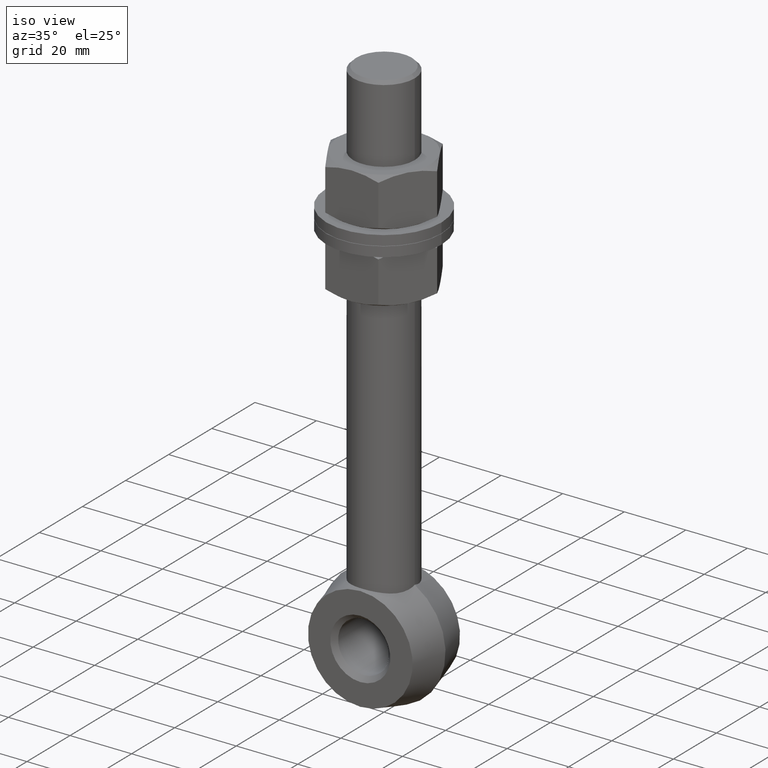
[diagram: clean part render]
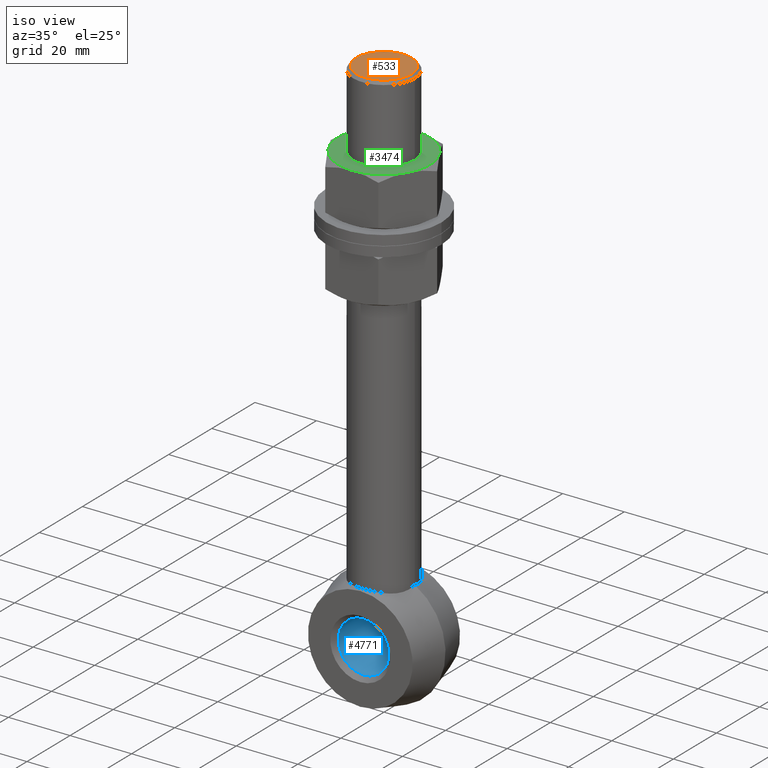
[diagram: same view with three faces highlighted in distinct colors, each labeled with its STEP entity id]
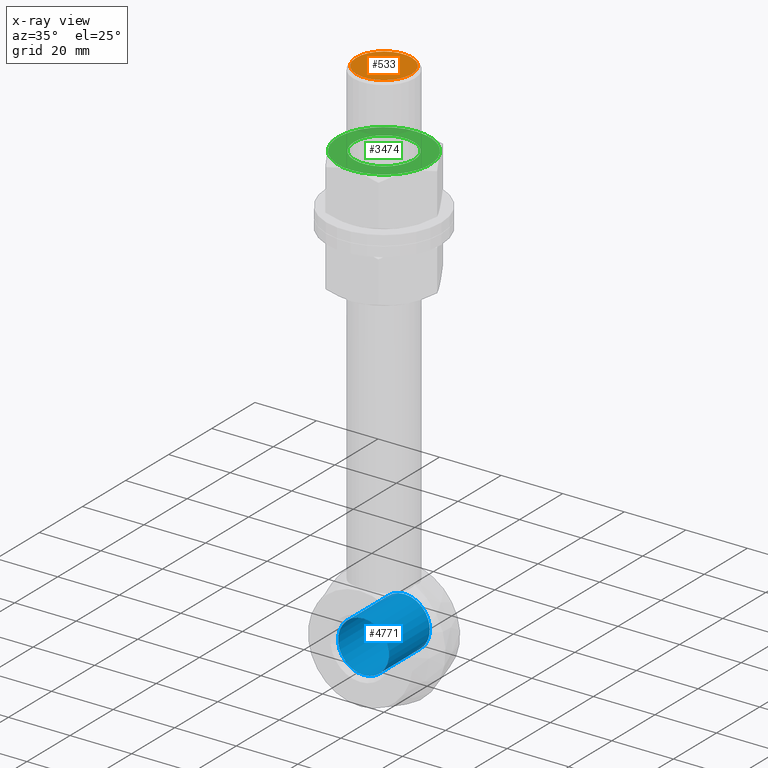
[diagram: x-ray of the same camera — body ghosted, the three highlighted faces saturated]
A machine part, iso view with three faces highlighted in distinct colors.
The next image is the same camera in x-ray (body ghosted, the three faces saturated) — at least one of them is partly hidden behind the body in this view.
Their STEP definitions:

[orange] entity #533 — the highlighted planar face has unit normal (0, 0, 1).
#533 = ADVANCED_FACE ( 'NONE', ( #6107 ), #5397, .T. ) ;
#551 = DIRECTION ( 'NONE',  ( 0.000000000000000000, 0.000000000000000000, 1.000000000000000000 ) ) ;
#1255 = CARTESIAN_POINT ( 'NONE',  ( 8.025394431364731758E-15, 0.000000000000000000, 83.50000000000000000 ) ) ;
#1591 = DIRECTION ( 'NONE',  ( 1.000000000000000000, 0.000000000000000000, -0.000000000000000000 ) ) ;
#1688 = CARTESIAN_POINT ( 'NONE',  ( 9.000000000000015987, 0.000000000000000000, 83.50000000000000000 ) ) ;
#1772 = EDGE_CURVE ( 'NONE', #6160, #6160, #1931, .T. ) ;
#1931 = CIRCLE ( 'NONE', #6230, 9.000000000000007105 ) ;
#3669 = ORIENTED_EDGE ( 'NONE', *, *, #1772, .T. ) ;
#3823 = CARTESIAN_POINT ( 'NONE',  ( 8.025394431364731758E-15, 0.000000000000000000, 83.50000000000000000 ) ) ;
#3874 = DIRECTION ( 'NONE',  ( 1.000000000000000000, 0.000000000000000000, 0.000000000000000000 ) ) ;
#5397 = PLANE ( 'NONE',  #5921 ) ;
#5921 = AXIS2_PLACEMENT_3D ( 'NONE', #3823, #551, #1591 ) ;
#6107 = FACE_OUTER_BOUND ( 'NONE', #6794, .T. ) ;
#6160 = VERTEX_POINT ( 'NONE', #1688 ) ;
#6230 = AXIS2_PLACEMENT_3D ( 'NONE', #1255, #6468, #3874 ) ;
#6468 = DIRECTION ( 'NONE',  ( 0.000000000000000000, 0.000000000000000000, 1.000000000000000000 ) ) ;
#6794 = EDGE_LOOP ( 'NONE', ( #3669 ) ) ;

[blue] entity #4771 — the highlighted cylindrical surface (bore or boss wall) has radius 8.25 mm, axis along (0, 1, 0).
#27 = EDGE_CURVE ( 'NONE', #184, #184, #3883, .T. ) ;
#184 = VERTEX_POINT ( 'NONE', #5582 ) ;
#225 = DIRECTION ( 'NONE',  ( -0.000000000000000000, -1.000000000000000000, -0.000000000000000000 ) ) ;
#245 = AXIS2_PLACEMENT_3D ( 'NONE', #1773, #6008, #6506 ) ;
#387 = AXIS2_PLACEMENT_3D ( 'NONE', #6309, #4204, #3155 ) ;
#399 = ORIENTED_EDGE ( 'NONE', *, *, #3100, .T. ) ;
#703 = CYLINDRICAL_SURFACE ( 'NONE', #245, 8.250000000000007105 ) ;
#766 = DIRECTION ( 'NONE',  ( 0.000000000000000000, 0.000000000000000000, 1.000000000000000000 ) ) ;
#910 = EDGE_LOOP ( 'NONE', ( #4862 ) ) ;
#1113 = FACE_OUTER_BOUND ( 'NONE', #1789, .T. ) ;
#1773 = CARTESIAN_POINT ( 'NONE',  ( 0.000000000000000000, -11.00000000000000000, -83.50000000000000000 ) ) ;
#1789 = EDGE_LOOP ( 'NONE', ( #399 ) ) ;
#2621 = VERTEX_POINT ( 'NONE', #3434 ) ;
#3100 = EDGE_CURVE ( 'NONE', #2621, #2621, #3214, .T. ) ;
#3155 = DIRECTION ( 'NONE',  ( 0.000000000000000000, 0.000000000000000000, 1.000000000000000000 ) ) ;
#3214 = CIRCLE ( 'NONE', #387, 8.250000000000007105 ) ;
#3421 = CARTESIAN_POINT ( 'NONE',  ( 0.000000000000000000, -9.499999999999991118, -83.50000000000000000 ) ) ;
#3434 = CARTESIAN_POINT ( 'NONE',  ( 0.000000000000000000, 9.499999999999962697, -75.25000000000000000 ) ) ;
#3809 = AXIS2_PLACEMENT_3D ( 'NONE', #3421, #225, #766 ) ;
#3883 = CIRCLE ( 'NONE', #3809, 8.250000000000007105 ) ;
#4204 = DIRECTION ( 'NONE',  ( 0.000000000000000000, 1.000000000000000000, 0.000000000000000000 ) ) ;
#4771 = ADVANCED_FACE ( 'NONE', ( #1113, #6572 ), #703, .F. ) ;
#4862 = ORIENTED_EDGE ( 'NONE', *, *, #27, .T. ) ;
#5582 = CARTESIAN_POINT ( 'NONE',  ( 0.000000000000000000, -9.499999999999991118, -75.25000000000000000 ) ) ;
#6008 = DIRECTION ( 'NONE',  ( -0.000000000000000000, 1.000000000000000000, -0.000000000000000000 ) ) ;
#6309 = CARTESIAN_POINT ( 'NONE',  ( 0.000000000000000000, 9.499999999999962697, -83.50000000000000000 ) ) ;
#6506 = DIRECTION ( 'NONE',  ( 0.000000000000000000, 0.000000000000000000, 1.000000000000000000 ) ) ;
#6572 = FACE_OUTER_BOUND ( 'NONE', #910, .T. ) ;

[green] entity #3474 — the highlighted planar face has unit normal (0, 0, -1).
#48 = CARTESIAN_POINT ( 'NONE',  ( 7.093063538981370224E-15, 14.94999999999989804, -8.000000000000007105 ) ) ;
#196 = CARTESIAN_POINT ( 'NONE',  ( -12.94707978657725000, -7.474999999999951683, -8.000000000000007105 ) ) ;
#212 = EDGE_CURVE ( 'NONE', #6204, #1670, #3390, .T. ) ;
#265 = CARTESIAN_POINT ( 'NONE',  ( 9.749999999999943157, -1.710569414459005214E-46, -8.000000000000007105 ) ) ;
#285 = CARTESIAN_POINT ( 'NONE',  ( 0.000000000000000000, -1.710569414459005214E-46, -8.000000000000007105 ) ) ;
#290 = CARTESIAN_POINT ( 'NONE',  ( 0.000000000000000000, -1.710569414459005214E-46, -8.000000000000007105 ) ) ;
#326 = ORIENTED_EDGE ( 'NONE', *, *, #6448, .T. ) ;
#428 = AXIS2_PLACEMENT_3D ( 'NONE', #1577, #2111, #2018 ) ;
#450 = ORIENTED_EDGE ( 'NONE', *, *, #1717, .T. ) ;
#640 = DIRECTION ( 'NONE',  ( -1.984260520772442401E-47, 2.777964729081442358E-46, 1.000000000000000000 ) ) ;
#662 = AXIS2_PLACEMENT_3D ( 'NONE', #5231, #3588, #4102 ) ;
#730 = DIRECTION ( 'NONE',  ( 1.000000000000000000, 6.394884621840860021E-14, 0.000000000000000000 ) ) ;
#789 = ORIENTED_EDGE ( 'NONE', *, *, #3248, .T. ) ;
#1484 = VERTEX_POINT ( 'NONE', #48 ) ;
#1559 = EDGE_CURVE ( 'NONE', #4158, #6204, #1847, .T. ) ;
#1577 = CARTESIAN_POINT ( 'NONE',  ( 5.590748940244300532E-15, 1.242508030958535132E-15, -8.000000000000007105 ) ) ;
#1602 = CARTESIAN_POINT ( 'NONE',  ( 5.590748940244300532E-15, 1.242508030958535132E-15, -8.000000000000007105 ) ) ;
#1622 = CARTESIAN_POINT ( 'NONE',  ( 5.590748940244300532E-15, 1.242508030958535132E-15, -8.000000000000007105 ) ) ;
#1670 = VERTEX_POINT ( 'NONE', #3252 ) ;
#1717 = EDGE_CURVE ( 'NONE', #5030, #4158, #4020, .T. ) ;
#1724 = DIRECTION ( 'NONE',  ( 1.000000000000000000, -2.229008395045601301E-65, 1.984260520772442401E-47 ) ) ;
#1838 = CARTESIAN_POINT ( 'NONE',  ( 5.590748940244300532E-15, 1.242508030958535132E-15, -8.000000000000007105 ) ) ;
#1847 = CIRCLE ( 'NONE', #428, 14.94999999999990692 ) ;
#2018 = DIRECTION ( 'NONE',  ( 1.000000000000000000, -7.993605777301075026E-15, 0.000000000000000000 ) ) ;
#2051 = CARTESIAN_POINT ( 'NONE',  ( 12.94707978657725889, -7.474999999999945466, -8.000000000000007105 ) ) ;
#2111 = DIRECTION ( 'NONE',  ( -1.984260520772441915E-47, -2.777964729081442358E-46, -1.000000000000000000 ) ) ;
#2434 = DIRECTION ( 'NONE',  ( -1.984260520772441915E-47, -2.777964729081442358E-46, -1.000000000000000000 ) ) ;
#2452 = CARTESIAN_POINT ( 'NONE',  ( 12.94707978657725356, 7.474999999999951683, -8.000000000000007105 ) ) ;
#2486 = FACE_OUTER_BOUND ( 'NONE', #5887, .T. ) ;
#2593 = ORIENTED_EDGE ( 'NONE', *, *, #6295, .T. ) ;
#2639 = FACE_BOUND ( 'NONE', #2784, .T. ) ;
#2710 = CIRCLE ( 'NONE', #3276, 9.749999999999943157 ) ;
#2784 = EDGE_LOOP ( 'NONE', ( #3907 ) ) ;
#2787 = DIRECTION ( 'NONE',  ( -1.984260520772441915E-47, -2.777964729081442358E-46, -1.000000000000000000 ) ) ;
#3154 = AXIS2_PLACEMENT_3D ( 'NONE', #1838, #2434, #6117 ) ;
#3248 = EDGE_CURVE ( 'NONE', #4077, #5030, #3718, .T. ) ;
#3252 = CARTESIAN_POINT ( 'NONE',  ( -12.94707978657725178, 7.474999999999953459, -8.000000000000007105 ) ) ;
#3276 = AXIS2_PLACEMENT_3D ( 'NONE', #285, #5097, #6124 ) ;
#3363 = DIRECTION ( 'NONE',  ( 1.000000000000000000, -7.993605777301075026E-15, 0.000000000000000000 ) ) ;
#3390 = CIRCLE ( 'NONE', #6310, 14.94999999999990692 ) ;
#3402 = CARTESIAN_POINT ( 'NONE',  ( 5.590748940244300532E-15, 1.242508030958535132E-15, -8.000000000000007105 ) ) ;
#3474 = ADVANCED_FACE ( 'NONE', ( #2639, #2486 ), #4494, .F. ) ;
#3478 = DIRECTION ( 'NONE',  ( -1.984260520772441915E-47, -2.777964729081442358E-46, -1.000000000000000000 ) ) ;
#3588 = DIRECTION ( 'NONE',  ( -6.842277657836016296E-49, 2.429977720668694721E-16, -1.000000000000000000 ) ) ;
#3718 = CIRCLE ( 'NONE', #5632, 14.94999999999990692 ) ;
#3773 = CIRCLE ( 'NONE', #662, 14.94999999999990159 ) ;
#3890 = ORIENTED_EDGE ( 'NONE', *, *, #1559, .T. ) ;
#3907 = ORIENTED_EDGE ( 'NONE', *, *, #4442, .T. ) ;
#4020 = CIRCLE ( 'NONE', #5797, 14.94999999999990692 ) ;
#4077 = VERTEX_POINT ( 'NONE', #2452 ) ;
#4102 = DIRECTION ( 'NONE',  ( 1.439757387212509045E-64, 1.000000000000000000, 2.320700302310125289E-16 ) ) ;
#4134 = CARTESIAN_POINT ( 'NONE',  ( 8.595378137718527481E-15, -14.94999999999989448, -8.000000000000007105 ) ) ;
#4158 = VERTEX_POINT ( 'NONE', #4134 ) ;
#4174 = ORIENTED_EDGE ( 'NONE', *, *, #212, .T. ) ;
#4442 = EDGE_CURVE ( 'NONE', #5687, #5687, #2710, .T. ) ;
#4494 = PLANE ( 'NONE',  #6537 ) ;
#5030 = VERTEX_POINT ( 'NONE', #2051 ) ;
#5097 = DIRECTION ( 'NONE',  ( 1.984260520772441915E-47, 2.777964729081442358E-46, 1.000000000000000000 ) ) ;
#5231 = CARTESIAN_POINT ( 'NONE',  ( 0.000000000000000000, 1.943982176534932505E-15, -8.000000000000007105 ) ) ;
#5324 = DIRECTION ( 'NONE',  ( -1.984260520772441915E-47, -2.777964729081442358E-46, -1.000000000000000000 ) ) ;
#5632 = AXIS2_PLACEMENT_3D ( 'NONE', #3402, #3478, #730 ) ;
#5687 = VERTEX_POINT ( 'NONE', #265 ) ;
#5797 = AXIS2_PLACEMENT_3D ( 'NONE', #1622, #2787, #3363 ) ;
#5836 = DIRECTION ( 'NONE',  ( 1.000000000000000000, 3.463895836830465687E-14, 0.000000000000000000 ) ) ;
#5887 = EDGE_LOOP ( 'NONE', ( #789, #450, #3890, #4174, #2593, #326 ) ) ;
#6117 = DIRECTION ( 'NONE',  ( 1.000000000000000000, -2.664535259100358658E-14, 0.000000000000000000 ) ) ;
#6124 = DIRECTION ( 'NONE',  ( 1.000000000000000000, 0.000000000000000000, 0.000000000000000000 ) ) ;
#6204 = VERTEX_POINT ( 'NONE', #196 ) ;
#6295 = EDGE_CURVE ( 'NONE', #1670, #1484, #6316, .T. ) ;
#6310 = AXIS2_PLACEMENT_3D ( 'NONE', #1602, #5324, #5836 ) ;
#6316 = CIRCLE ( 'NONE', #3154, 14.94999999999990692 ) ;
#6448 = EDGE_CURVE ( 'NONE', #1484, #4077, #3773, .T. ) ;
#6537 = AXIS2_PLACEMENT_3D ( 'NONE', #290, #640, #1724 ) ;